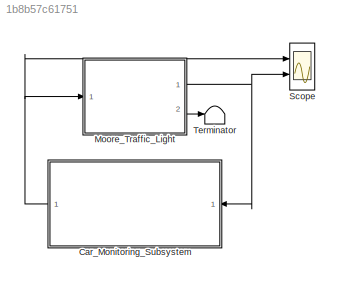
MODEL slx_1b8b57c61751
KIND model
CONFIG AbsTol = auto
CONFIG EnableMultiTasking = off
CONFIG FixedStep = 0.1
CONFIG MaxStep = auto
CONFIG MinStep = auto
CONFIG RelTol = 1e-3
CONFIG SampleTimeConstraint = Unconstrained
CONFIG Solver = FixedStepDiscrete
CONFIG SolverName = FixedStepDiscrete
CONFIG StartTime = 0.0
CONFIG StopTime = 150.0
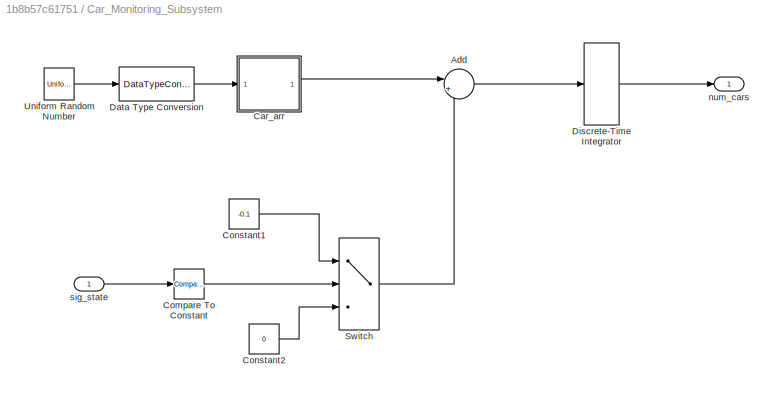
BLOCK [SubSystem] Car_Monitoring_Subsystem
  Ports = [1, 1]
  RequestExecContextInheritance = off
BLOCK [Sum] Car_Monitoring_Subsystem/Add
  Inputs = |++
  Ports = [2, 1]
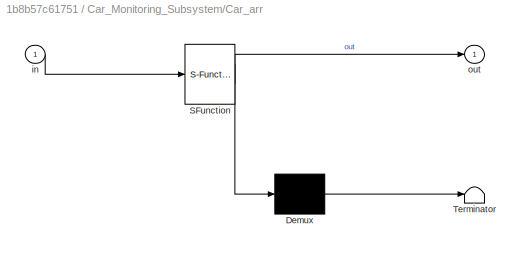
BLOCK [SubSystem] Car_Monitoring_Subsystem/Car_arr
  ErrorFcn = Stateflow.Translate.translate
  PermitHierarchicalResolution = ExplicitOnly
  Ports = [1, 1]
  RequestExecContextInheritance = off
  SFBlockType = Chart
  TreatAsAtomicUnit = on
BLOCK [Demux] Car_Monitoring_Subsystem/Car_arr/ Demux 
  Outputs = 1
  Ports = [1, 1]
BLOCK [S-Function] Car_Monitoring_Subsystem/Car_arr/ SFunction 
  EnableBusSupport = on
  FunctionName = sf_sfun
  PortCounts = [1 2]
  Ports = [1, 2]
  SFcnIsStateOwnerBlock = off
  SFunctionDeploymentMode = off
  Tag = Stateflow S-Function 4
BLOCK [Terminator] Car_Monitoring_Subsystem/Car_arr/ Terminator 
BLOCK [Inport] Car_Monitoring_Subsystem/Car_arr/in
BLOCK [Outport] Car_Monitoring_Subsystem/Car_arr/out
  VectorParamsAs1DForOutWhenUnconnected = off
BLOCK [Reference] Car_Monitoring_Subsystem/Compare To Constant  REF=simulink/Logic and Bit
Operations/Compare
To Constant
  Ports = [1, 1]
  SourceBlock = simulink/Logic and Bit\nOperations/Compare\nTo Constant
  SourceProductBaseCode = SL
  SourceType = Compare To Constant
BLOCK [Constant] Car_Monitoring_Subsystem/Constant1
  Value = -0.1
BLOCK [Constant] Car_Monitoring_Subsystem/Constant2
  Value = 0
BLOCK [DataTypeConversion] Car_Monitoring_Subsystem/Data Type Conversion
  RndMeth = Floor
  SaturateOnIntegerOverflow = off
BLOCK [DiscreteIntegrator] Car_Monitoring_Subsystem/Discrete-Time Integrator
  ICPrevOutput = DiscIntNeverNeededParam
  ICPrevScaledInput = DiscIntNeverNeededParam
  LimitOutput = on
  LowerSaturationLimit = 0
  Ports = [1, 1]
  SampleTime = -1
BLOCK [Switch] Car_Monitoring_Subsystem/Switch
  Criteria = u2 ~= 0
  InputSameDT = off
  SaturateOnIntegerOverflow = off
BLOCK [UniformRandomNumber] Car_Monitoring_Subsystem/Uniform Random Number
  Maximum = 100
  Minimum = 0
  SampleTime = 0
  Seed = 177836
BLOCK [Outport] Car_Monitoring_Subsystem/num_cars
  VectorParamsAs1DForOutWhenUnconnected = off
BLOCK [Inport] Car_Monitoring_Subsystem/sig_state
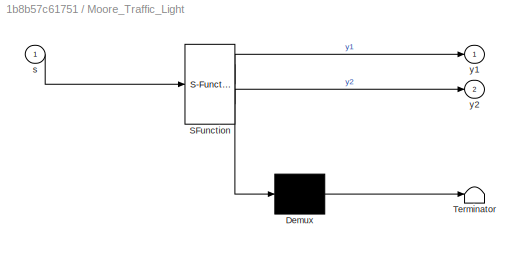
BLOCK [SubSystem] Moore_Traffic_Light
  ErrorFcn = Stateflow.Translate.translate
  PermitHierarchicalResolution = ExplicitOnly
  Ports = [1, 2]
  RequestExecContextInheritance = off
  SFBlockType = Chart
  TreatAsAtomicUnit = on
BLOCK [Demux] Moore_Traffic_Light/ Demux 
  Outputs = 1
  Ports = [1, 1]
BLOCK [S-Function] Moore_Traffic_Light/ SFunction 
  EnableBusSupport = on
  FunctionName = sf_sfun
  PortCounts = [1 3]
  Ports = [1, 3]
  SFcnIsStateOwnerBlock = off
  SFunctionDeploymentMode = off
  Tag = Stateflow S-Function 2
BLOCK [Terminator] Moore_Traffic_Light/ Terminator 
BLOCK [Inport] Moore_Traffic_Light/s
BLOCK [Outport] Moore_Traffic_Light/y1
  VectorParamsAs1DForOutWhenUnconnected = off
BLOCK [Outport] Moore_Traffic_Light/y2
  Port = 2
  VectorParamsAs1DForOutWhenUnconnected = off
BLOCK [Scope] Scope
  Floating = off
  NumInputPorts = 2
  Ports = [2]
  ScopeSpecificationString = Simulink.scopes.TimeScopeBlockCfg('CurrentConfiguration', extmgr.ConfigurationSet(extmgr.Configuration('Core','General UI',true),extmgr.Configuration('Core','Source UI',true),extmgr.Configuration('Sources','WiredSimulink',true,'DataLoggingSaveFormat','StructureWithTime','DataLoggingLimitDataPoints',true,'DataLoggingDecimation','1'),extmgr.Configuration('Visuals','Time Domain',true,'SerializedDispl...<+2442ch>
BLOCK [Terminator] Terminator
LINE Car_Monitoring_Subsystem/Add:1 -> Car_Monitoring_Subsystem/Discrete-Time Integrator:1
LINE Car_Monitoring_Subsystem/Car_arr:1 -> Car_Monitoring_Subsystem/Add:1
LINE Car_Monitoring_Subsystem/Compare To Constant:1 -> Car_Monitoring_Subsystem/Switch:2
LINE Car_Monitoring_Subsystem/Constant1:1 -> Car_Monitoring_Subsystem/Switch:1
LINE Car_Monitoring_Subsystem/Constant2:1 -> Car_Monitoring_Subsystem/Switch:3
LINE Car_Monitoring_Subsystem/Data Type Conversion:1 -> Car_Monitoring_Subsystem/Car_arr:1
LINE Car_Monitoring_Subsystem/Discrete-Time Integrator:1 -> Car_Monitoring_Subsystem/num_cars:1
LINE Car_Monitoring_Subsystem/Switch:1 -> Car_Monitoring_Subsystem/Add:2
LINE Car_Monitoring_Subsystem/Uniform Random Number:1 -> Car_Monitoring_Subsystem/Data Type Conversion:1
LINE Car_Monitoring_Subsystem/sig_state:1 -> Car_Monitoring_Subsystem/Compare To Constant:1
NET Car_Monitoring_Subsystem:1 -> Moore_Traffic_Light:1, Scope:1
NET Moore_Traffic_Light:1 -> Car_Monitoring_Subsystem:1, Scope:2
LINE Moore_Traffic_Light:2 -> Terminator:1
note: NET lines group one-source signal fan-out (src -> all destinations, sorted); 1:1 wires keep LINE
CHART Moore_Traffic_Light states=5 transitions=6
  STATE_LABEL 'Stop_for_Traffic\ny1 = R;\ny2 = G;'
  STATE_LABEL 'Stop\ny1 = R;\ny2 = G;'
  STATE_LABEL 'Stop_to_Go\ny1 = R;\ny2 = Y;'
  STATE_LABEL 'Go_to_Stop\ny1 = Y;\ny2 = R;'
  STATE_LABEL 'Go\ny1 = G;\ny2 = R;'
CHART Car_Monitoring_Subsystem/Car_arr states=0 transitions=1
CHART  states=0 transitions=0
CHART  states=0 transitions=0
